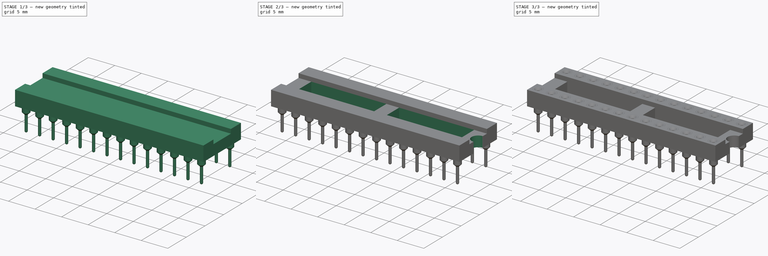
[diagram: build sequence overview — one tinted view per stage of 3, left to right]
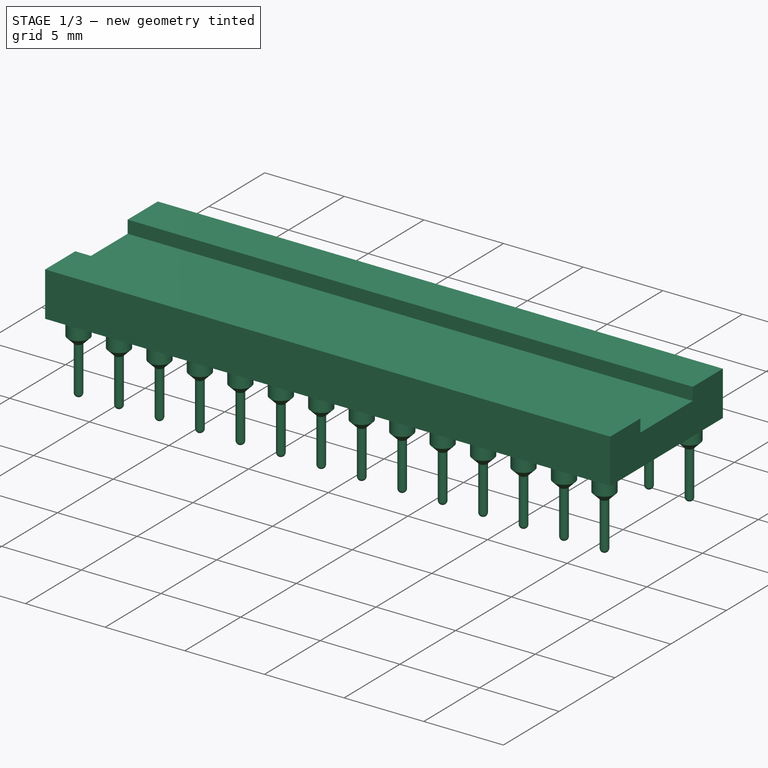
[diagram: stage 1 of 3 — iso view after this stage's code; geometry added in this stage tinted green]
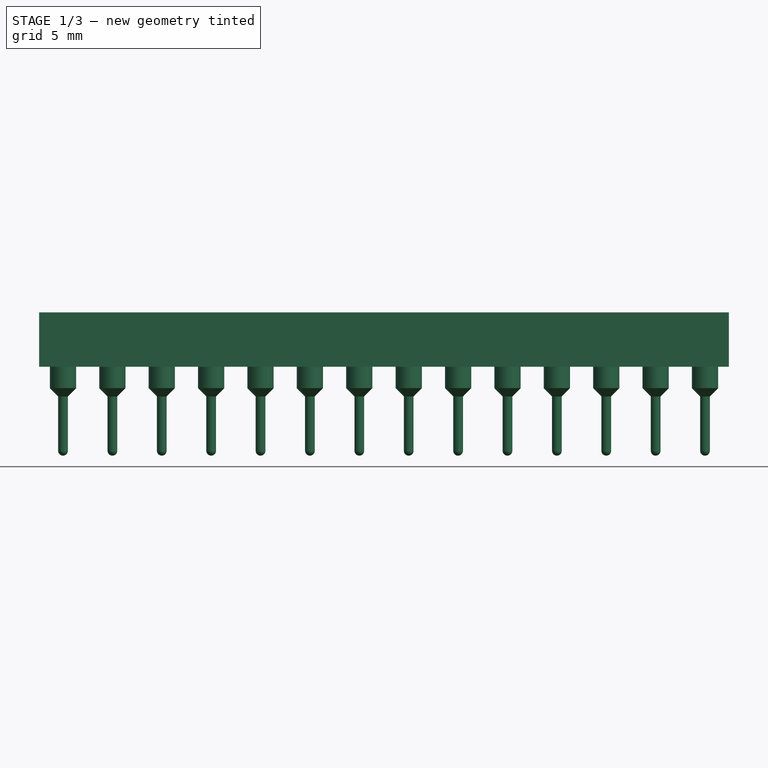
[diagram: stage 1 of 3 — front view after this stage's code; geometry added in this stage tinted green]
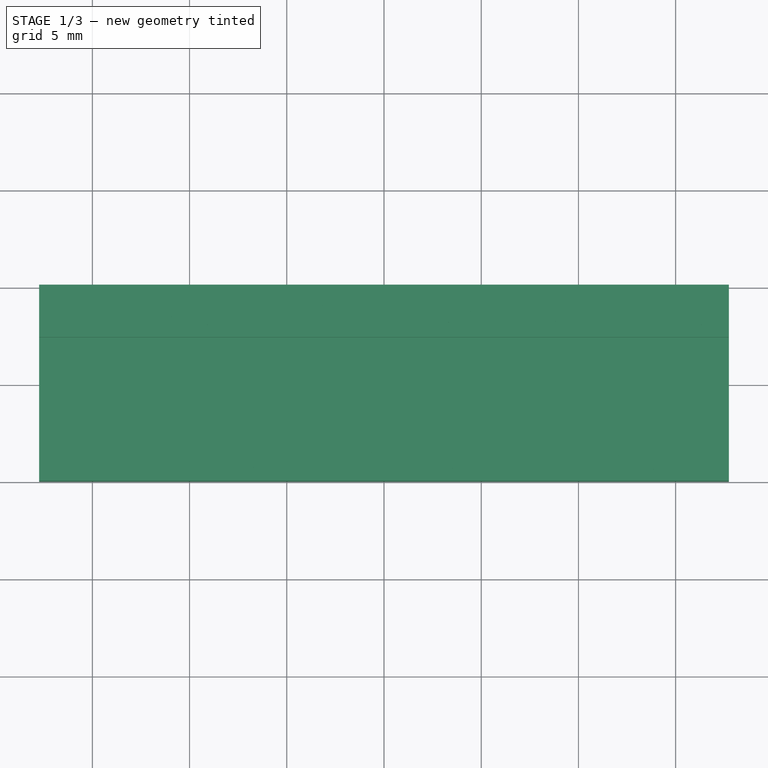
[diagram: stage 1 of 3 — top view after this stage's code; geometry added in this stage tinted green]
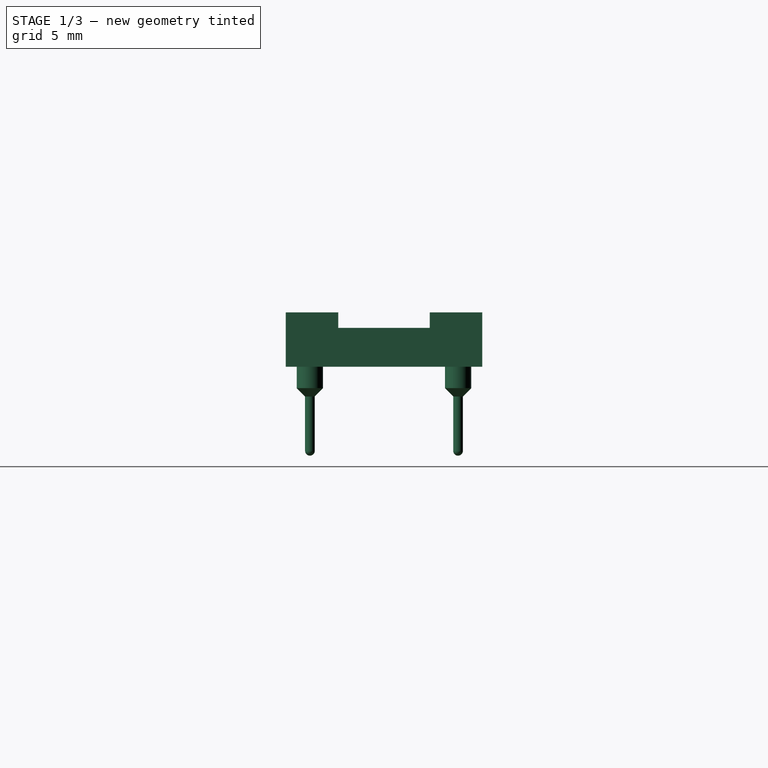
[diagram: stage 1 of 3 — right view after this stage's code; geometry added in this stage tinted green]
FCSTD DOCUMENT  (FreeCAD 0.18.4R)
Label: DIP 28
Comment: https://designlibre.org/license-en/
License: Other
LicenseURL: https://designlibre.org/license-en/
objects: Sketcher::SketchObject×6, PartDesign::Pocket×4, PartDesign::LinearPattern×2, PartDesign::Body×2, PartDesign::Pad×1, PartDesign::MultiTransform×1, PartDesign::Revolution×1, Part::FeaturePython×1, App::Part×1
note: 24 computed .brp shape members not serialized (recipe doc carries the construction recipe); baked Part::Feature solids carry a one-line shape summary decoded from their .brp

FEATURE [Sketcher::SketchObject] Sketch
  MapMode = 5
  Placement = pos=(0,0,0) rot=(0.57735,0.57735,0.57735;2.0944rad)
  Support = -> [YZ_Plane001]
  sketch-geometry (8):
    g0: LineSegment StartX=5.05 StartY=2.8 StartZ=0 EndX=5.05 EndY=0 EndZ=0
    g1: LineSegment StartX=5.05 StartY=0 StartZ=0 EndX=-5.05 EndY=0 EndZ=0
    g2: LineSegment StartX=-5.05 StartY=0 StartZ=0 EndX=-5.05 EndY=2.8 EndZ=0
    g3: LineSegment StartX=-5.05 StartY=2.8 StartZ=0 EndX=-2.35 EndY=2.8 EndZ=0
    g4: LineSegment StartX=-2.35 StartY=2.8 StartZ=0 EndX=-2.35 EndY=2 EndZ=0
    g5: LineSegment StartX=-2.35 StartY=2 StartZ=0 EndX=2.35 EndY=2 EndZ=0
    g6: LineSegment StartX=2.35 StartY=2 StartZ=0 EndX=2.35 EndY=2.8 EndZ=0
    g7: LineSegment StartX=2.35 StartY=2.8 StartZ=0 EndX=5.05 EndY=2.8 EndZ=0
  constraints (23):
    c: PointOnObject(g0,g-1)
    c: Coincident(g0,g1)
    c: Horizontal(g1)
    c: Coincident(g1,g2)
    c: Vertical(g2)
    c: Coincident(g2,g3)
    c: Horizontal(g3)
    c: Coincident(g3,g4)
    c: Coincident(g4,g5)
    c: Coincident(g5,g6)
    c: Vertical(g6)
    c: Coincident(g6,g7)
    c: Coincident(g7,g0)
    c: Vertical(g0)
    c: Vertical(g4)
    c: Horizontal(g7)
    c: Equal(g4,g6)
    c: DistanceY(g1,g4) = 2
    c: DistanceY(g2,g2) = 2.8
    c: DistanceX(g1,g1) = 10.1
    c: DistanceX(g5,g5) = 4.7
    c: Equal(g7,g3)
    c: Symmetric(g5,g4,g-2)
FEATURE [PartDesign::Pad] Pad
  Length = 35.48
  Length2 = 100
  Midplane = true
  Placement = pos=(0,0,0) rot=(0.57735,0.57735,0.57735;2.0944rad)
  Profile = -> Sketch
  Refine = true
  Type = 0
FEATURE [PartDesign::Body] Body  label="Socket"
  Group = -> [Sketch,Pad,Sketch001,Pocket,Sketch002,Pocket001,Sketch003,Pocket002,Sketch004,Pocket003,MultiTransform,LinearPattern,LinearPattern001]
  Origin = -> Origin001
  Tip = -> MultiTransform
FEATURE [Sketcher::SketchObject] Sketch005
  MapMode = 5
  Placement = pos=(0,0,0) rot=(1,0,0;1.5708rad)
  Support = -> [XZ_Plane002]
  sketch-geometry (11):
    g0: LineSegment StartX=-0.3 StartY=-0.35 StartZ=0 EndX=-0.65 EndY=0 EndZ=0
    g1: LineSegment StartX=-0.65 StartY=0 StartZ=0 EndX=-0.85 EndY=0 EndZ=0
    g2: LineSegment StartX=-0.85 StartY=0 StartZ=0 EndX=-0.85 EndY=-1 EndZ=0
    g3: LineSegment StartX=-0.85 StartY=-1 StartZ=0 EndX=-0.675 EndY=-1 EndZ=0
    g4: LineSegment StartX=-0.675 StartY=-1 StartZ=0 EndX=-0.675 EndY=-3.9 EndZ=0
    g5: LineSegment StartX=-0.675 StartY=-3.9 StartZ=0 EndX=-0.25 EndY=-4.325 EndZ=0
    g6: LineSegment StartX=-0.25 StartY=-4.325 StartZ=0 EndX=-0.25 EndY=-7.12 EndZ=0
    g7: LineSegment StartX=0 StartY=-7.37 StartZ=0 EndX=0 EndY=-4 EndZ=0
    g8: LineSegment StartX=0 StartY=-4 StartZ=0 EndX=-0.3 EndY=-3.7 EndZ=0
    g9: LineSegment StartX=-0.3 StartY=-3.7 StartZ=0 EndX=-0.3 EndY=-0.35 EndZ=0
    g10: ArcOfCircle CenterX=0 CenterY=-7.12 CenterZ=0 NormalX=0 NormalY=0 NormalZ=1 AngleXU=0 Radius=0.25 StartAngle=3.14159 EndAngle=4.71239
  constraints (33):
    c: PointOnObject(g0,g-1)
    c: Coincident(g0,g1)
    c: PointOnObject(g1,g-1)
    c: Coincident(g1,g2)
    c: Vertical(g2)
    c: Coincident(g2,g3)
    c: Horizontal(g3)
    c: Coincident(g3,g4)
    c: Vertical(g4)
    c: Coincident(g4,g5)
    c: Coincident(g5,g6)
    c: Vertical(g6)
    c: PointOnObject(g7,g-2)
    c: Vertical(g7)
    c: Coincident(g7,g8)
    c: Coincident(g8,g9)
    c: Coincident(g9,g0)
    c: Vertical(g9)
    c: DistanceY(g0,g-1) = 0.35
    c: Parallel(g5,g8)
    c: DistanceX(g0,g0) = 0.35
    c: DistanceY(g2,g2) = 1
    c: Tangent(g6,g10) = -1.5708
    c: DistanceX(g6,g7) = 0.25
    c: Coincident(g10,g7)
    c: PointOnObject(g10,g7)
    c: Angle(g-2,g8) = 0.785398
    c: DistanceY(g10,g-1) = 7.12
    c: DistanceX(g3,g-1) = 0.675
    c: DistanceX(g1,g-1) = 0.85
    c: DistanceY(g4,g1) = 3.9
    c: DistanceY(g8,g1) = 3.7
    c: DistanceX(g8,g7) = 0.3
FEATURE [PartDesign::Revolution] Revolution
  Angle = 360
  Axis = (0,2e-16,1)
  Base = (0,0,0)
  Placement = pos=(0,0,0) rot=(1,0,0;1.5708rad)
  Profile = -> Sketch005
  ReferenceAxis = -> Sketch005 [V_Axis]
  Refine = true
FEATURE [PartDesign::Body] Body001  label="Pin"
  Group = -> [Sketch005,Revolution]
  Origin = -> Origin002
  Placement = pos=(16.51,3.81,2.8) rot=(0,0,1;0rad)
  Tip = -> Revolution
FEATURE [Part::FeaturePython] Array  # Draft array (typed FeaturePython)
  Angle = 360
  ArrayType = 0
  Axis = (0,0,1)
  Base = -> Body001
  Center = (0,0,0)
  Fuse = false
  IntervalAxis = (0,0,0)
  IntervalX = (-2.54,0,0)
  IntervalY = (0,-7.62,0)
  IntervalZ = (0,0,1)
  NumberPolar = 1
  NumberX = 14
  NumberY = 2
  NumberZ = 1
FEATURE [App::Part] Part  label="DIP Socket"
  Group = -> [Body,Body001,Array]
  Origin = -> Origin
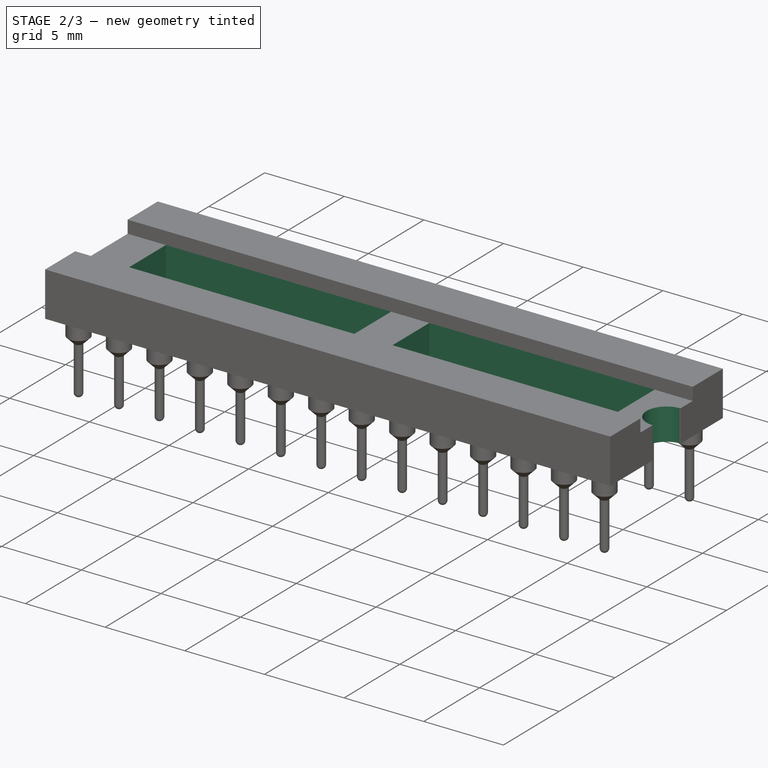
[diagram: stage 2 of 3 — iso view after this stage's code; geometry added in this stage tinted green]
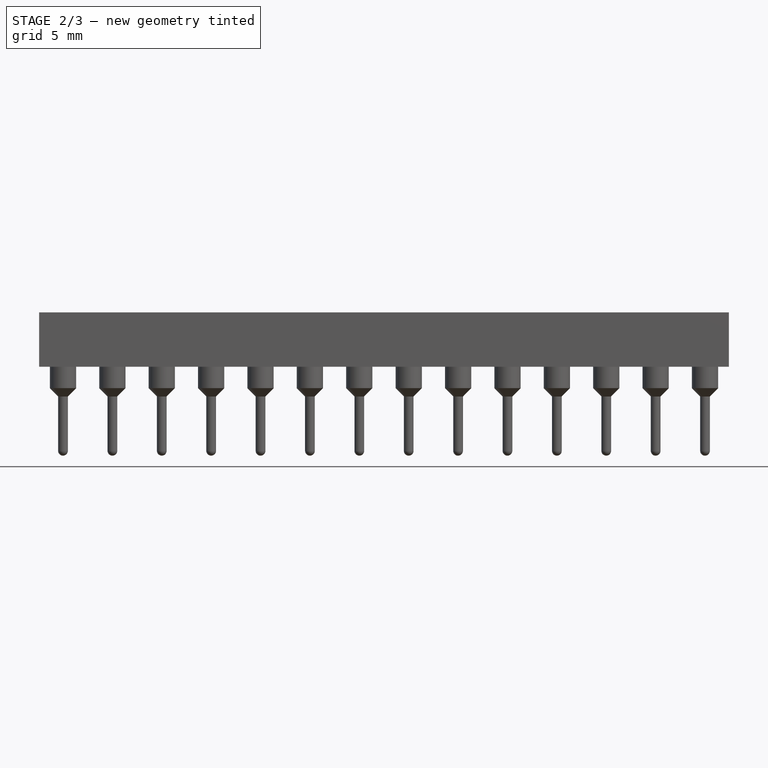
[diagram: stage 2 of 3 — front view after this stage's code; geometry added in this stage tinted green]
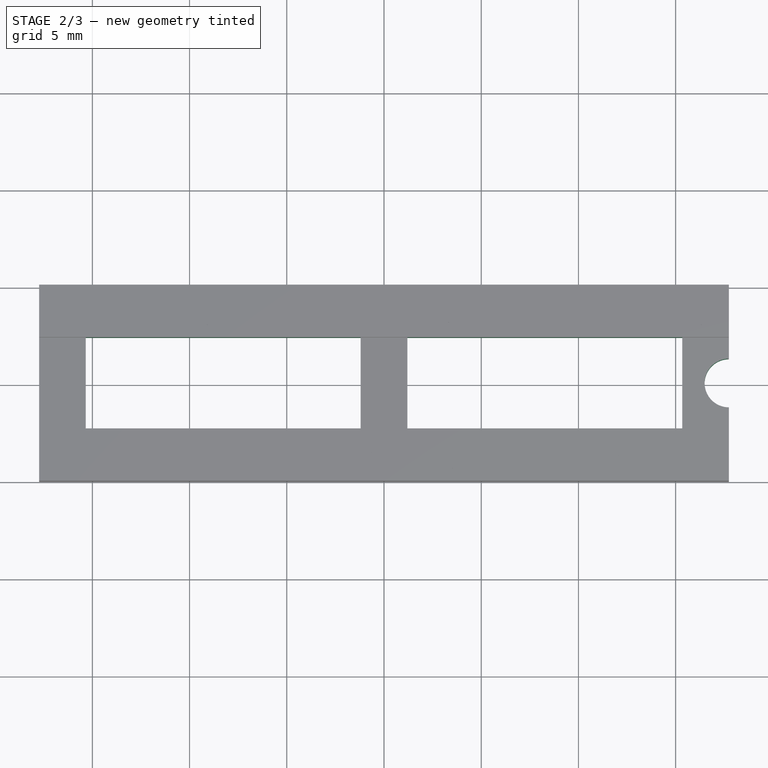
[diagram: stage 2 of 3 — top view after this stage's code; geometry added in this stage tinted green]
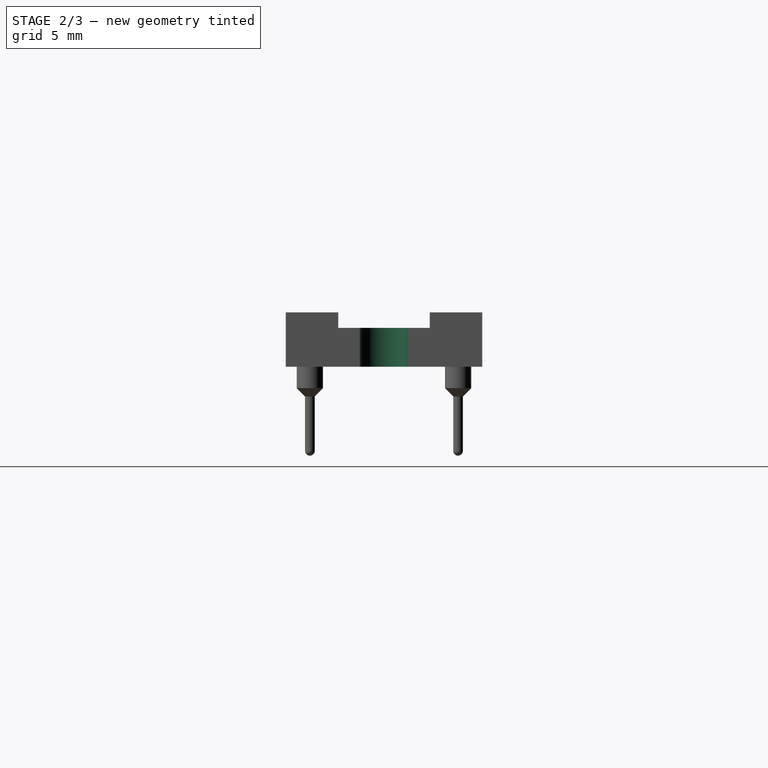
[diagram: stage 2 of 3 — right view after this stage's code; geometry added in this stage tinted green]
FEATURE [Sketcher::SketchObject] Sketch001
  ExternalGeometry = -> [Pad]
  MapMode = 5
  Support = -> [XY_Plane001]
  sketch-geometry (8):
    g0: LineSegment StartX=-15.34 StartY=2.35 StartZ=0 EndX=-1.2 EndY=2.35 EndZ=0
    g1: LineSegment StartX=-1.2 StartY=2.35 StartZ=0 EndX=-1.2 EndY=-2.35 EndZ=0
    g2: LineSegment StartX=-1.2 StartY=-2.35 StartZ=0 EndX=-15.34 EndY=-2.35 EndZ=0
    g3: LineSegment StartX=-15.34 StartY=-2.35 StartZ=0 EndX=-15.34 EndY=2.35 EndZ=0
    g4: LineSegment StartX=1.2 StartY=2.35 StartZ=0 EndX=15.34 EndY=2.35 EndZ=0
    g5: LineSegment StartX=15.34 StartY=2.35 StartZ=0 EndX=15.34 EndY=-2.35 EndZ=0
    g6: LineSegment StartX=15.34 StartY=-2.35 StartZ=0 EndX=1.2 EndY=-2.35 EndZ=0
    g7: LineSegment StartX=1.2 StartY=-2.35 StartZ=0 EndX=1.2 EndY=2.35 EndZ=0
  constraints (23):
    c: Coincident(g0,g1)
    c: Coincident(g1,g2)
    c: Coincident(g2,g3)
    c: Coincident(g3,g0)
    c: Horizontal(g0)
    c: Horizontal(g2)
    c: Vertical(g1)
    c: Vertical(g3)
    c: PointOnObject(g1,g-4)
    c: PointOnObject(g0,g-3)
    c: Coincident(g4,g5)
    c: Coincident(g5,g6)
    c: Coincident(g6,g7)
    c: Coincident(g7,g4)
    c: Horizontal(g4)
    c: Horizontal(g6)
    c: Vertical(g5)
    c: Vertical(g7)
    c: PointOnObject(g5,g-4)
    c: Equal(g4,g0)
    c: Symmetric(g4,g0,g-2)
    c: DistanceX(g0,g4) = 2.4
    c: DistanceX(g4,g-3) = 2.4
FEATURE [PartDesign::Pocket] Pocket
  BaseFeature = -> Pad
  Length = 5
  Length2 = 100
  Placement = pos=(0,0,0) rot=(0.57735,0.57735,0.57735;2.0944rad)
  Profile = -> Sketch001
  Refine = true
  Reversed = true
  Type = 1
FEATURE [Sketcher::SketchObject] Sketch002
  ExternalGeometry = -> [Pocket]
  MapMode = 5
  Support = -> [XY_Plane001]
  sketch-geometry (1):
    g0: Circle CenterX=17.74 CenterY=0 CenterZ=0 NormalX=0 NormalY=0 NormalZ=1 AngleXU=0 Radius=1.25
  constraints (3):
    c: PointOnObject(g0,g-3)
    c: PointOnObject(g0,g-1)
    c: Radius(g0) = 1.25
FEATURE [PartDesign::Pocket] Pocket001
  BaseFeature = -> Pocket
  Length = 5
  Length2 = 100
  Placement = pos=(0,0,0) rot=(0.57735,0.57735,0.57735;2.0944rad)
  Profile = -> Sketch002
  Refine = true
  Reversed = true
  Type = 0
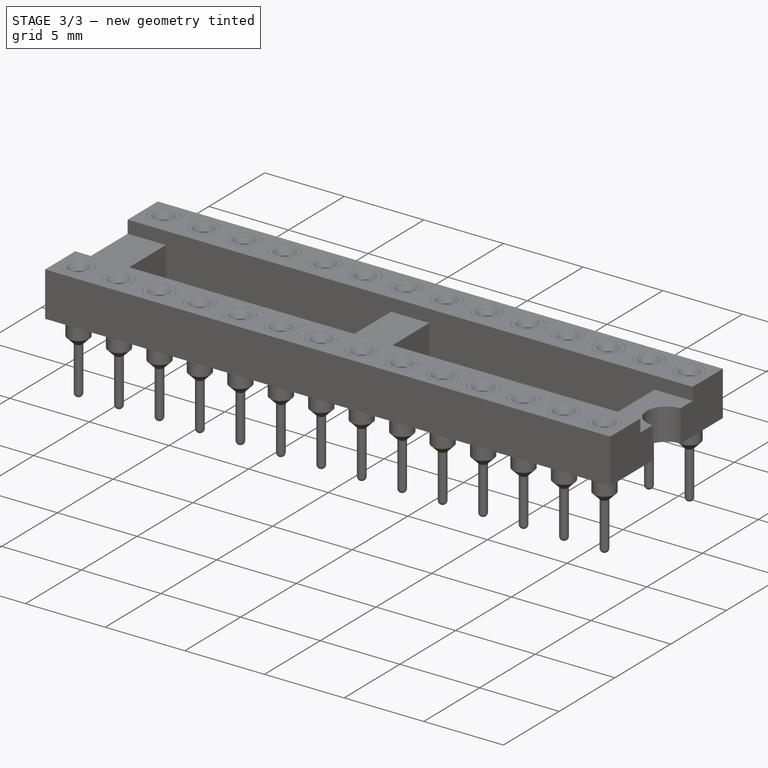
[diagram: stage 3 of 3 — iso view after this stage's code; geometry added in this stage tinted green]
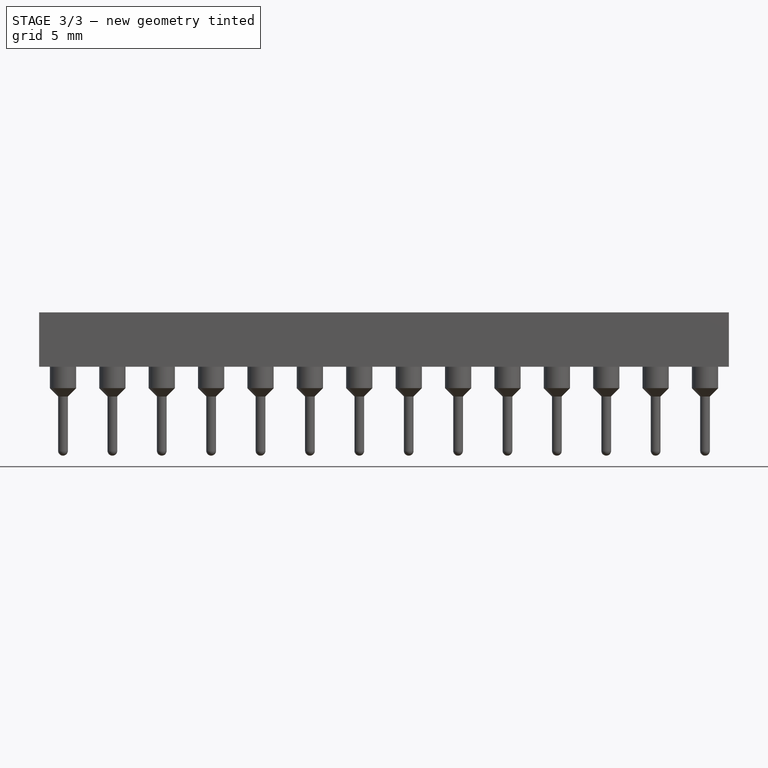
[diagram: stage 3 of 3 — front view after this stage's code; geometry added in this stage tinted green]
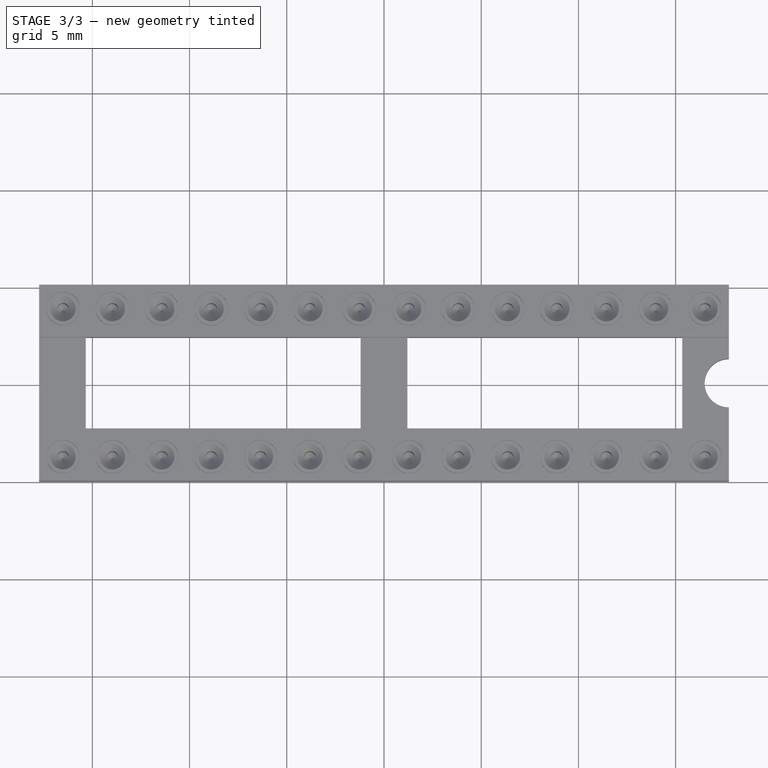
[diagram: stage 3 of 3 — top view after this stage's code; geometry added in this stage tinted green]
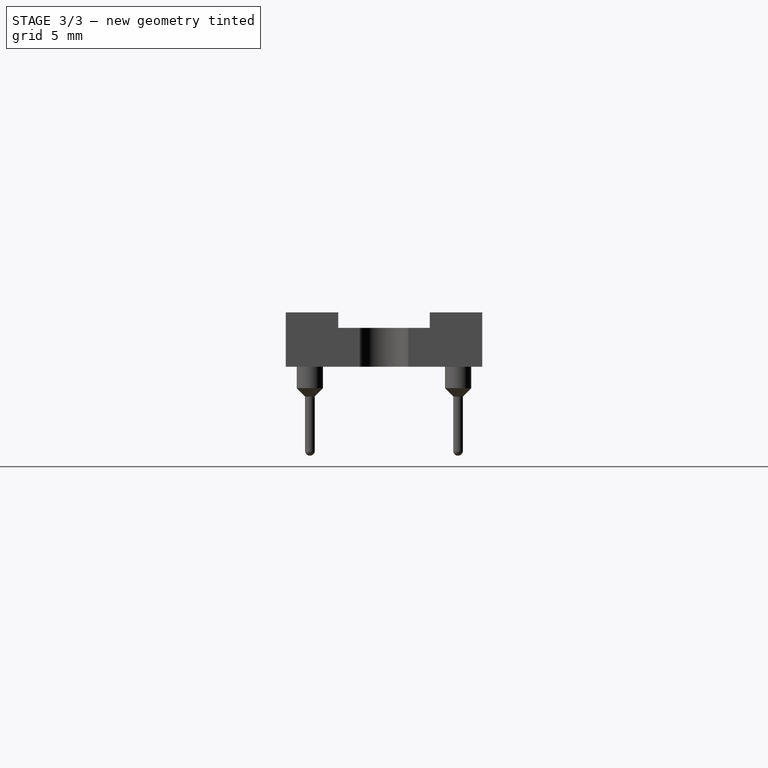
[diagram: stage 3 of 3 — right view after this stage's code; geometry added in this stage tinted green]
FEATURE [Sketcher::SketchObject] Sketch003
  MapMode = 5
  Placement = pos=(-8e-16,1.2e-15,2.8) rot=(0,0,-1;1.5708rad)
  Support = -> [Pocket001]
  sketch-geometry (1):
    g0: Circle CenterX=-3.81 CenterY=16.51 CenterZ=0 NormalX=0 NormalY=0 NormalZ=1 AngleXU=0 Radius=0.86
  constraints (3):
    c: DistanceX(g0,g-1) = 3.81
    c: DistanceY(g-1,g0) = 16.51
    c: Radius(g0) = 0.86
FEATURE [PartDesign::Pocket] Pocket002
  BaseFeature = -> Pocket001
  Length = 1
  Length2 = 100
  Placement = pos=(0,0,0) rot=(0.57735,0.57735,0.57735;2.0944rad)
  Profile = -> Sketch003
  Refine = true
  Type = 0
FEATURE [Sketcher::SketchObject] Sketch004
  ExternalGeometry = -> [Pocket002]
  MapMode = 5
  Placement = pos=(-2.1e-15,1.2e-15,1.8) rot=(0,0,-1;1.5708rad)
  Support = -> [Pocket002]
  sketch-geometry (1):
    g0: Circle CenterX=-3.81 CenterY=16.51 CenterZ=0 NormalX=0 NormalY=0 NormalZ=1 AngleXU=0 Radius=0.5
  constraints (2):
    c: Coincident(g0,g-3)
    c: Radius(g0) = 0.5
FEATURE [PartDesign::Pocket] Pocket003
  BaseFeature = -> Pocket002
  Length = 2
  Length2 = 100
  Placement = pos=(0,0,0) rot=(0.57735,0.57735,0.57735;2.0944rad)
  Profile = -> Sketch004
  Refine = true
  Type = 0
FEATURE [PartDesign::LinearPattern] LinearPattern
  Direction = -> X_Axis001
  Length = 33.02
  Occurrences = 14
  Placement = pos=(0,0,0) rot=(0.57735,0.57735,0.57735;2.0944rad)
  Refine = true
  Reversed = true
FEATURE [PartDesign::LinearPattern] LinearPattern001
  Direction = -> Y_Axis001
  Length = 7.62
  Occurrences = 2
  Placement = pos=(0,0,0) rot=(0.57735,0.57735,0.57735;2.0944rad)
  Refine = true
  Reversed = true
FEATURE [PartDesign::MultiTransform] MultiTransform
  BaseFeature = -> Pocket003
  Originals = -> [Pocket002,Pocket003]
  Placement = pos=(0,0,0) rot=(0.57735,0.57735,0.57735;2.0944rad)
  Refine = true
  Transformations = -> [LinearPattern,LinearPattern001]
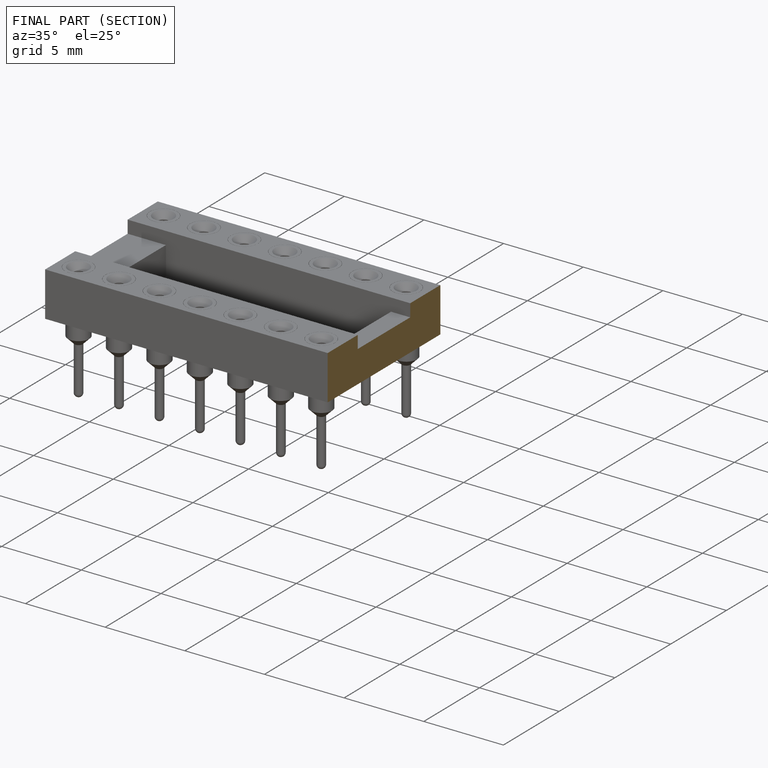
[diagram: finished part — half-section view (interior)]
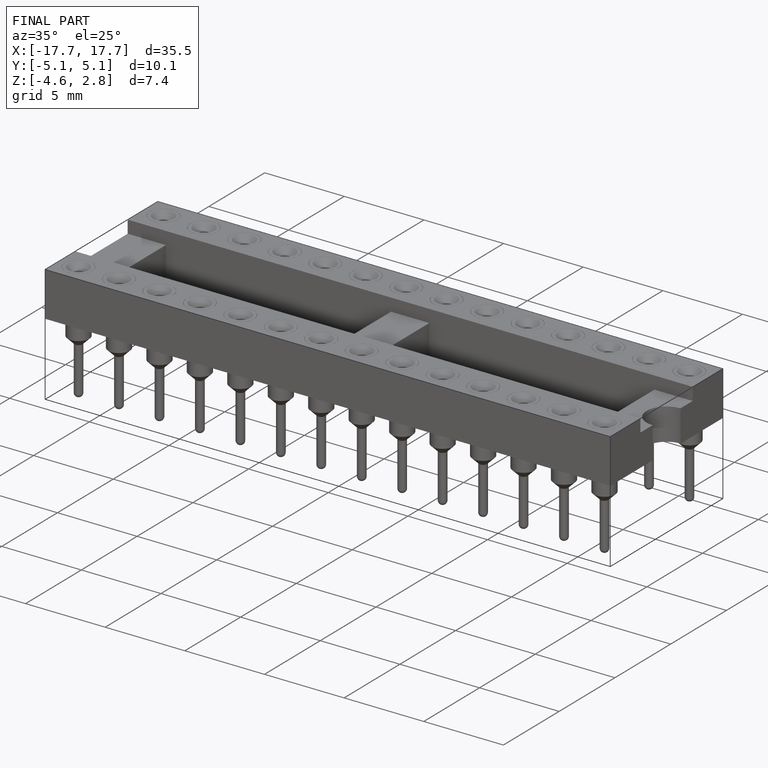
[diagram: finished part — iso view with bounding-box wireframe]
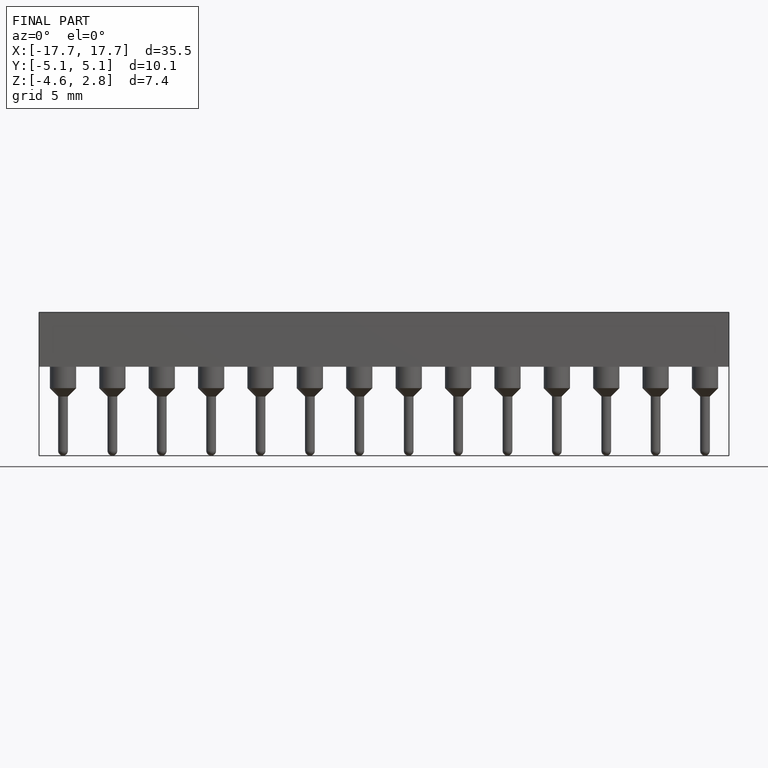
[diagram: finished part — front view with bounding-box wireframe]
